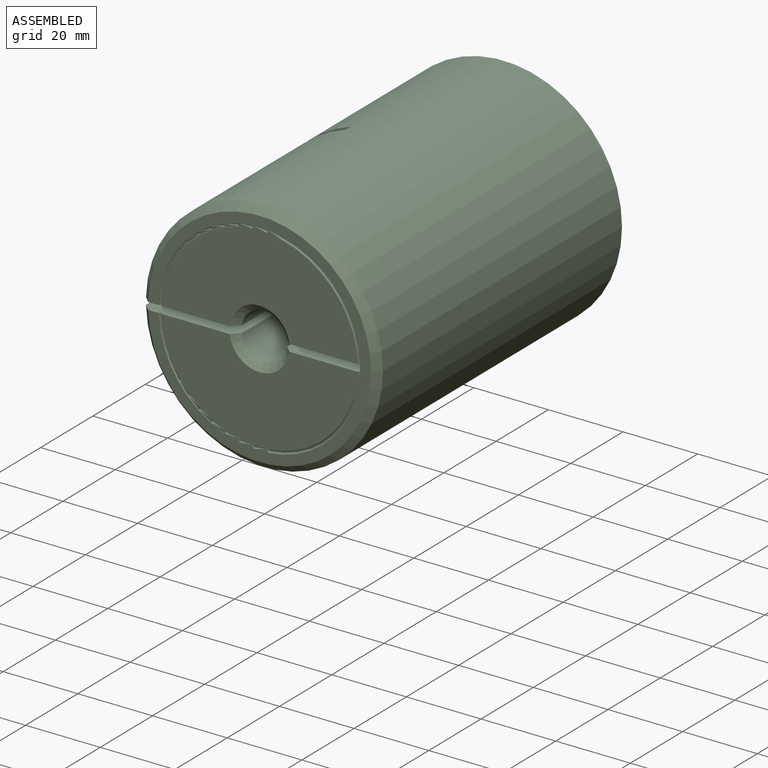
[diagram: assembled view]
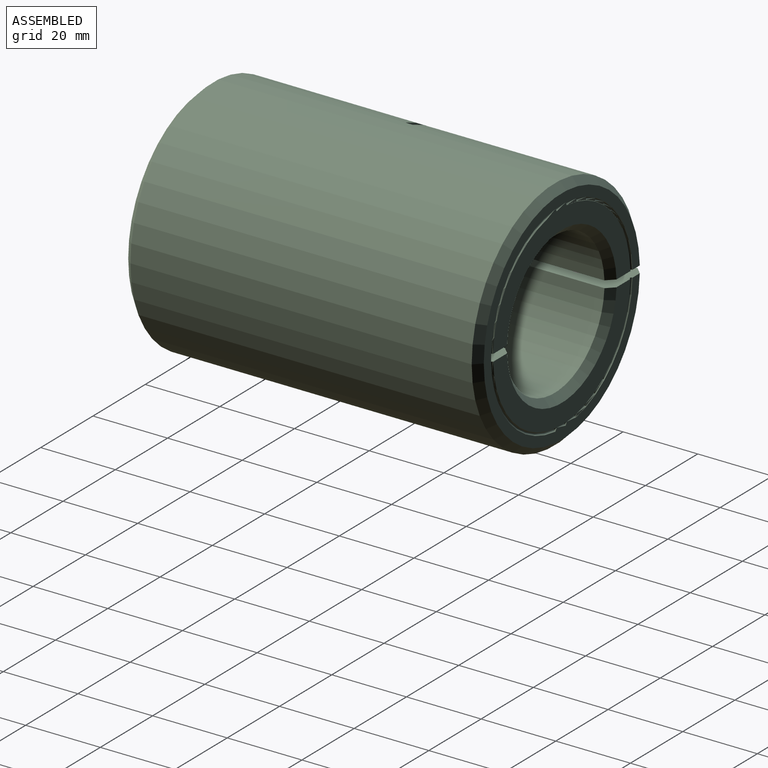
[diagram: assembled view, second angle]
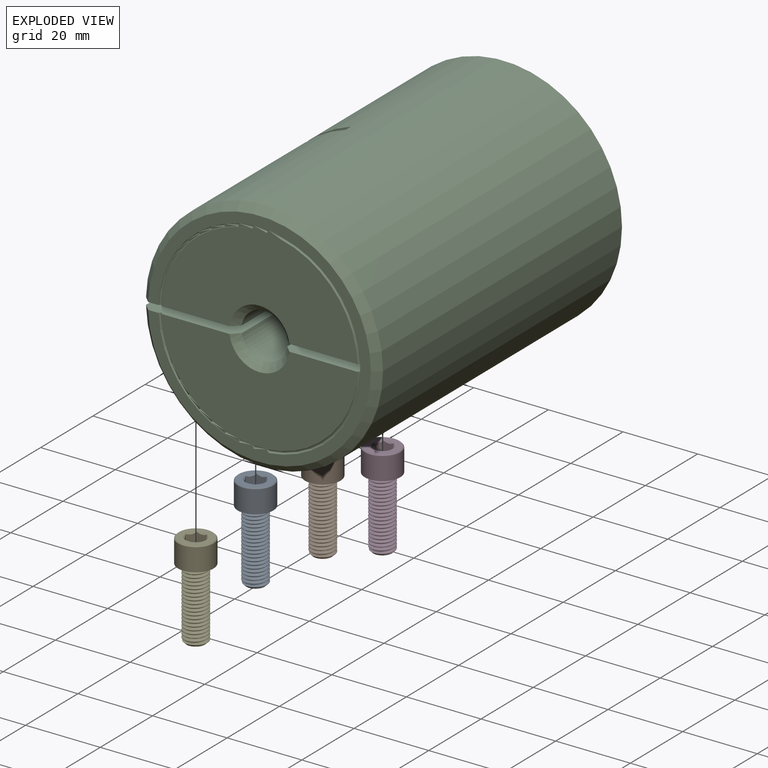
[diagram: exploded view]
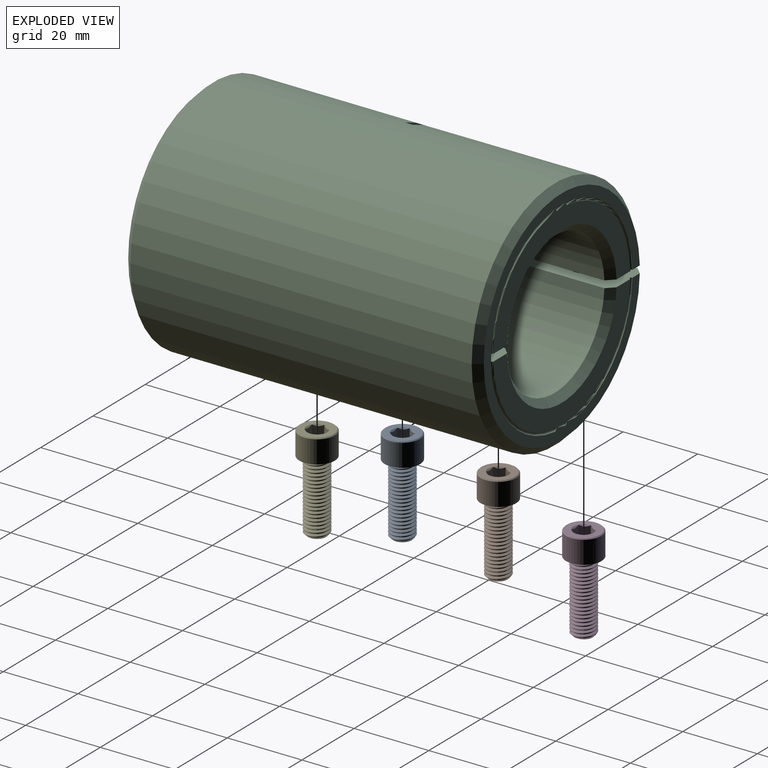
[diagram: exploded view, second angle]
ASSEMBLY  parts=5 mates=4
PART A: 24 faces, bbox 9.9x9.9x26.1 mm
  f0: cylinder r=3.17mm len=18.36mm, axis (0,0,1), area 45.7mm2, adj f1,f18,f19,f21,f22
  f1: plane 9.88x9.88mm, normal (0,0,-1), area 45.1mm2, adj f0,f2,f21,f22,f23
  f2: cylinder r=4.76mm len=9.53mm, axis (0,0,1), area 182.4mm2, adj f1,f3
  f3: cone r=4.51mm half-angle=45deg, axis (0,0,-1), area 10.5mm2, adj f2,f4
  f4: plane 9.02x9.02mm, normal (0,0,1), area 40.1mm2, adj f3,f5,f6,f7,f8,f9,f10
  f5: cone r=2.75mm half-angle=45deg, axis (0,0,1), area 1mm2, adj f4,f12
  f6: cone r=2.75mm half-angle=45deg, axis (0,0,1), area 1mm2, adj f4,f13
  f7: cone r=2.75mm half-angle=45deg, axis (0,0,1), area 1mm2, adj f4,f14
  f8: cone r=2.75mm half-angle=45deg, axis (0,0,1), area 1mm2, adj f4,f15
  f9: cone r=2.75mm half-angle=45deg, axis (0,0,1), area 1mm2, adj f4,f16
  f10: cone r=2.75mm half-angle=45deg, axis (0,0,1), area 1mm2, adj f4,f17
  f11: plane 5.5x4.76mm, normal (0,0,1), area 19.6mm2, adj f12,f13,f14,f15,f16,f17
  f12: plane 4.45x2.38mm, normal (0.5,-0.87,0), area 11.6mm2, adj f5,f11,f13,f17
  f13: plane 4.45x2.75mm, normal (1,0,0), area 11.6mm2, adj f6,f11,f12,f14
  f14: plane 4.45x2.38mm, normal (0.5,0.87,0), area 11.6mm2, adj f7,f11,f13,f15
  f15: plane 4.45x2.38mm, normal (-0.5,0.87,0), area 11.6mm2, adj f8,f11,f14,f16
  f16: plane 4.45x2.75mm, normal (-1,0,0), area 11.6mm2, adj f9,f11,f15,f17
  f17: plane 4.45x2.38mm, normal (-0.5,-0.87,0), area 11.6mm2, adj f10,f11,f12,f16
  f18: cone r=2.49mm half-angle=45deg, axis (0,0,1), area 9.6mm2, adj f0,f19,f20,f21,f22,f23
  f19: cone r=2.49mm half-angle=45deg, axis (0,0,1), area 0mm2, adj f0,f18,f22
  f20: plane 4.98x4.98mm, normal (0,0,-1), area 19.4mm2, adj f18
  f21: bspline ~19.87x6.45mm, area 254mm2, adj f0,f1,f18,f23
  f22: bspline ~19.42x6.45mm, area 253.2mm2, adj f0,f1,f18,f19,f23
  f23: cylinder r=2.59mm len=18.95mm, axis (0,0,-1), area 38.8mm2, adj f1,f18,f21,f22
PART B: 24 faces, bbox 9.9x9.9x26.1 mm
  f0: cylinder r=3.17mm len=18.36mm, axis (0,0,1), area 45.7mm2, adj f1,f18,f19,f21,f22
  f1: plane 9.88x9.88mm, normal (0,0,-1), area 45.1mm2, adj f0,f2,f21,f22,f23
  f2: cylinder r=4.76mm len=9.53mm, axis (0,0,1), area 182.4mm2, adj f1,f3
  f3: cone r=4.51mm half-angle=45deg, axis (0,0,-1), area 10.5mm2, adj f2,f4
  f4: plane 9.02x9.02mm, normal (0,0,1), area 40.1mm2, adj f3,f5,f6,f7,f8,f9,f10
  f5: cone r=2.75mm half-angle=45deg, axis (0,0,1), area 1mm2, adj f4,f12
  f6: cone r=2.75mm half-angle=45deg, axis (0,0,1), area 1mm2, adj f4,f13
  f7: cone r=2.75mm half-angle=45deg, axis (0,0,1), area 1mm2, adj f4,f14
  f8: cone r=2.75mm half-angle=45deg, axis (0,0,1), area 1mm2, adj f4,f15
  f9: cone r=2.75mm half-angle=45deg, axis (0,0,1), area 1mm2, adj f4,f16
  f10: cone r=2.75mm half-angle=45deg, axis (0,0,1), area 1mm2, adj f4,f17
  f11: plane 5.5x4.76mm, normal (0,0,1), area 19.6mm2, adj f12,f13,f14,f15,f16,f17
  f12: plane 4.45x2.38mm, normal (0.5,-0.87,0), area 11.6mm2, adj f5,f11,f13,f17
  f13: plane 4.45x2.75mm, normal (1,0,0), area 11.6mm2, adj f6,f11,f12,f14
  f14: plane 4.45x2.38mm, normal (0.5,0.87,0), area 11.6mm2, adj f7,f11,f13,f15
  f15: plane 4.45x2.38mm, normal (-0.5,0.87,0), area 11.6mm2, adj f8,f11,f14,f16
  f16: plane 4.45x2.75mm, normal (-1,0,0), area 11.6mm2, adj f9,f11,f15,f17
  f17: plane 4.45x2.38mm, normal (-0.5,-0.87,0), area 11.6mm2, adj f10,f11,f12,f16
  f18: cone r=2.49mm half-angle=45deg, axis (0,0,1), area 9.6mm2, adj f0,f19,f20,f21,f22,f23
  f19: cone r=2.49mm half-angle=45deg, axis (0,0,1), area 0mm2, adj f0,f18,f22
  f20: plane 4.98x4.98mm, normal (0,0,-1), area 19.4mm2, adj f18
  f21: bspline ~19.87x6.45mm, area 254mm2, adj f0,f1,f18,f23
  f22: bspline ~19.42x6.45mm, area 253.2mm2, adj f0,f1,f18,f19,f23
  f23: cylinder r=2.59mm len=18.95mm, axis (0,0,-1), area 38.8mm2, adj f1,f18,f21,f22
PART C: 50 faces, bbox 95.8x63.5x63.5 mm
  f0: plane 46.68x12.72mm, normal (0,0,-1), area 526mm2, adj f9,f10,f11,f12,f18,f21,f22,f31
  f1: plane 46.68x12.72mm, normal (0,0,1), area 526mm2, adj f2,f6,f8,f10,f11,f12,f22,f30
  f2: plane 52.51x25.32mm, normal (-1,0,0), area 384.4mm2, adj f1,f8,f10,f26
  f3: plane 52.51x25.32mm, normal (1,0,0), area 947.4mm2, adj f7,f14,f24,f26
  f4: cylinder r=6.16mm len=45.72mm, axis (-1,0,0), area 797.3mm2, adj f5,f7,f24,f26
  f5: plane 28.55x18.1mm, normal (-1,0,0), area 383.5mm2, adj f4,f6,f24,f26,f29
  f6: cylinder r=19.05mm len=45.72mm, axis (-1,0,0), area 2631mm2, adj f1,f5,f8,f26,f29,f30
  f7: cone r=8.06mm half-angle=45deg, axis (1,0,0), area 55mm2, adj f3,f4,f24,f26
  f8: cone r=19.05mm half-angle=45deg, axis (-1,0,0), area 164.2mm2, adj f1,f2,f6,f26
  f9: plane 52.51x25.32mm, normal (-1,0,0), area 384.4mm2, adj f0,f10,f21,f27
  f10: torus R=26.67mm, axis (-1,0,0), area 205.4mm2, adj f0,f1,f2,f9,f11,f25,f26,f27
  f11: plane 59.69x59.67mm, normal (-1,0,0), area 491.4mm2, adj f0,f1,f10,f22
  f12: cylinder r=31.75mm len=91.44mm, axis (-1,0,0), area 17161.4mm2, adj f0,f1,f19,f22,f23,f24,f28,f29
  f13: plane 59.69x59.67mm, normal (1,0,0), area 491.4mm2, adj f14,f19,f23,f24
  f14: torus R=26.67mm, axis (-1,0,0), area 205.4mm2, adj f3,f13,f15,f23,f24,f25,f26,f27
  f15: plane 52.51x25.32mm, normal (1,0,0), area 947.4mm2, adj f14,f20,f23,f27
  f16: cylinder r=6.16mm len=45.72mm, axis (-1,0,0), area 797.3mm2, adj f17,f20,f23,f27
  f17: plane 28.55x18.1mm, normal (-1,0,0), area 383.5mm2, adj f16,f18,f23,f27,f32
  f18: cylinder r=19.05mm len=45.72mm, axis (-1,0,0), area 2631mm2, adj f0,f17,f21,f27,f31,f32
  f19: cone r=31.75mm half-angle=45deg, axis (-1,0,0), area 516.2mm2, adj f12,f13,f23,f24
  f20: cone r=8.06mm half-angle=45deg, axis (1,0,0), area 55mm2, adj f15,f16,f23,f27
  f21: cone r=19.05mm half-angle=45deg, axis (-1,0,0), area 164.2mm2, adj f0,f9,f18,f27
  f22: cone r=29.84mm half-angle=45deg, axis (1,0,0), area 516.2mm2, adj f0,f1,f11,f12
  f23: plane 47.66x25.69mm, normal (0,0,-1), area 1133.2mm2, adj f12,f13,f14,f15,f16,f17,f19,f20
  f24: plane 47.66x25.69mm, normal (0,0,1), area 1133.2mm2, adj f3,f4,f5,f7,f12,f13,f14,f19
  f25: plane 94.46x1.91mm, normal (0,-1,0), area 179.9mm2, adj f10,f14,f26,f27
  f26: plane 95.29x20.62mm, normal (0,0,1), area 1340.5mm2, adj f2,f3,f4,f5,f6,f7,f8,f10
  f27: plane 95.29x20.62mm, normal (0,0,-1), area 1340.5mm2, adj f9,f10,f14,f15,f16,f17,f18,f20
  f28: plane 29.34x22.21mm, normal (-1,0,0), area 472.7mm2, adj f12,f24,f29
  f29: plane 29.34x1.91mm, normal (0,-1,0), area 41.1mm2, adj f5,f6,f12,f24,f28,f30
  f30: plane 29.34x22.21mm, normal (1,0,0), area 370.4mm2, adj f1,f6,f12,f29
  f31: plane 29.34x22.21mm, normal (1,0,0), area 370.4mm2, adj f0,f12,f18,f32
  f32: plane 29.34x1.91mm, normal (0,-1,0), area 41.1mm2, adj f12,f17,f18,f23,f31,f33
  f33: plane 29.34x22.21mm, normal (-1,0,0), area 472.7mm2, adj f12,f23,f32
  f34: cylinder r=3.17mm len=21.72mm, axis (0,0,1), area 353.2mm2, adj f1,f12
  f35: cylinder r=4.91mm len=17.91mm, axis (0,0,1), area 360.2mm2, adj f12,f37
  f36: cylinder r=3.17mm len=6.35mm, axis (0,0,1), area 107.7mm2, adj f0,f37
  f37: plane 9.83x9.83mm, normal (0,0,1), area 44.2mm2, adj f35,f36
  f38: cylinder r=3.17mm len=21.72mm, axis (0,0,1), area 353.2mm2, adj f1,f12
  f39: cylinder r=4.91mm len=17.91mm, axis (0,0,1), area 360.2mm2, adj f12,f41
  f40: cylinder r=3.17mm len=6.35mm, axis (0,0,1), area 107.7mm2, adj f0,f41
  f41: plane 9.83x9.83mm, normal (0,0,1), area 44.2mm2, adj f39,f40
  f42: cylinder r=3.17mm len=21.72mm, axis (0,0,1), area 353.3mm2, adj f12,f24
  f43: cylinder r=4.91mm len=17.91mm, axis (0,0,1), area 360.4mm2, adj f12,f45
  f44: cylinder r=3.17mm len=6.35mm, axis (0,0,1), area 107.7mm2, adj f23,f45
  f45: plane 9.83x9.83mm, normal (0,0,1), area 44.2mm2, adj f43,f44
  f46: cylinder r=3.17mm len=21.72mm, axis (0,0,1), area 353.3mm2, adj f12,f24
  f47: cylinder r=4.91mm len=17.91mm, axis (0,0,1), area 360.4mm2, adj f12,f49
  f48: cylinder r=3.17mm len=6.35mm, axis (0,0,1), area 107.7mm2, adj f23,f49
  f49: plane 9.83x9.83mm, normal (0,0,1), area 44.2mm2, adj f47,f48
PART D: 24 faces, bbox 9.9x9.9x26.1 mm
  f0: cylinder r=3.17mm len=18.36mm, axis (0,0,1), area 45.7mm2, adj f1,f18,f19,f21,f22
  f1: plane 9.88x9.88mm, normal (0,0,-1), area 45.1mm2, adj f0,f2,f21,f22,f23
  f2: cylinder r=4.76mm len=9.53mm, axis (0,0,1), area 182.4mm2, adj f1,f3
  f3: cone r=4.51mm half-angle=45deg, axis (0,0,-1), area 10.5mm2, adj f2,f4
  f4: plane 9.02x9.02mm, normal (0,0,1), area 40.1mm2, adj f3,f5,f6,f7,f8,f9,f10
  f5: cone r=2.75mm half-angle=45deg, axis (0,0,1), area 1mm2, adj f4,f12
  f6: cone r=2.75mm half-angle=45deg, axis (0,0,1), area 1mm2, adj f4,f13
  f7: cone r=2.75mm half-angle=45deg, axis (0,0,1), area 1mm2, adj f4,f14
  f8: cone r=2.75mm half-angle=45deg, axis (0,0,1), area 1mm2, adj f4,f15
  f9: cone r=2.75mm half-angle=45deg, axis (0,0,1), area 1mm2, adj f4,f16
  f10: cone r=2.75mm half-angle=45deg, axis (0,0,1), area 1mm2, adj f4,f17
  f11: plane 5.5x4.76mm, normal (0,0,1), area 19.6mm2, adj f12,f13,f14,f15,f16,f17
  f12: plane 4.45x2.38mm, normal (0.5,-0.87,0), area 11.6mm2, adj f5,f11,f13,f17
  f13: plane 4.45x2.75mm, normal (1,0,0), area 11.6mm2, adj f6,f11,f12,f14
  f14: plane 4.45x2.38mm, normal (0.5,0.87,0), area 11.6mm2, adj f7,f11,f13,f15
  f15: plane 4.45x2.38mm, normal (-0.5,0.87,0), area 11.6mm2, adj f8,f11,f14,f16
  f16: plane 4.45x2.75mm, normal (-1,0,0), area 11.6mm2, adj f9,f11,f15,f17
  f17: plane 4.45x2.38mm, normal (-0.5,-0.87,0), area 11.6mm2, adj f10,f11,f12,f16
  f18: cone r=2.49mm half-angle=45deg, axis (0,0,1), area 9.6mm2, adj f0,f19,f20,f21,f22,f23
  f19: cone r=2.49mm half-angle=45deg, axis (0,0,1), area 0mm2, adj f0,f18,f22
  f20: plane 4.98x4.98mm, normal (0,0,-1), area 19.4mm2, adj f18
  f21: bspline ~19.87x6.45mm, area 254mm2, adj f0,f1,f18,f23
  f22: bspline ~19.42x6.45mm, area 253.2mm2, adj f0,f1,f18,f19,f23
  f23: cylinder r=2.59mm len=18.95mm, axis (0,0,-1), area 38.8mm2, adj f1,f18,f21,f22
PART E: 24 faces, bbox 9.9x9.9x26.1 mm
  f0: cylinder r=3.17mm len=18.36mm, axis (0,0,1), area 45.7mm2, adj f1,f18,f19,f21,f22
  f1: plane 9.88x9.88mm, normal (0,0,-1), area 45.1mm2, adj f0,f2,f21,f22,f23
  f2: cylinder r=4.76mm len=9.53mm, axis (0,0,1), area 182.4mm2, adj f1,f3
  f3: cone r=4.51mm half-angle=45deg, axis (0,0,-1), area 10.5mm2, adj f2,f4
  f4: plane 9.02x9.02mm, normal (0,0,1), area 40.1mm2, adj f3,f5,f6,f7,f8,f9,f10
  f5: cone r=2.75mm half-angle=45deg, axis (0,0,1), area 1mm2, adj f4,f12
  f6: cone r=2.75mm half-angle=45deg, axis (0,0,1), area 1mm2, adj f4,f13
  f7: cone r=2.75mm half-angle=45deg, axis (0,0,1), area 1mm2, adj f4,f14
  f8: cone r=2.75mm half-angle=45deg, axis (0,0,1), area 1mm2, adj f4,f15
  f9: cone r=2.75mm half-angle=45deg, axis (0,0,1), area 1mm2, adj f4,f16
  f10: cone r=2.75mm half-angle=45deg, axis (0,0,1), area 1mm2, adj f4,f17
  f11: plane 5.5x4.76mm, normal (0,0,1), area 19.6mm2, adj f12,f13,f14,f15,f16,f17
  f12: plane 4.45x2.38mm, normal (0.5,-0.87,0), area 11.6mm2, adj f5,f11,f13,f17
  f13: plane 4.45x2.75mm, normal (1,0,0), area 11.6mm2, adj f6,f11,f12,f14
  f14: plane 4.45x2.38mm, normal (0.5,0.87,0), area 11.6mm2, adj f7,f11,f13,f15
  f15: plane 4.45x2.38mm, normal (-0.5,0.87,0), area 11.6mm2, adj f8,f11,f14,f16
  f16: plane 4.45x2.75mm, normal (-1,0,0), area 11.6mm2, adj f9,f11,f15,f17
  f17: plane 4.45x2.38mm, normal (-0.5,-0.87,0), area 11.6mm2, adj f10,f11,f12,f16
  f18: cone r=2.49mm half-angle=45deg, axis (0,0,1), area 9.6mm2, adj f0,f19,f20,f21,f22,f23
  f19: cone r=2.49mm half-angle=45deg, axis (0,0,1), area 0mm2, adj f0,f18,f22
  f20: plane 4.98x4.98mm, normal (0,0,-1), area 19.4mm2, adj f18
  f21: bspline ~19.87x6.45mm, area 254mm2, adj f0,f1,f18,f23
  f22: bspline ~19.42x6.45mm, area 253.2mm2, adj f0,f1,f18,f19,f23
  f23: cylinder r=2.59mm len=18.95mm, axis (0,0,-1), area 38.8mm2, adj f1,f18,f21,f22
PLACE A rot(axis=(0,0,-1),90deg) t=(0,0,0)mm
PLACE B rot(axis=(0,0,-1),90deg) t=(0,0,0)mm
PLACE C rot(axis=(0,0,-1),90deg) t=(0,0,0)mm
PLACE D rot(axis=(0,0,-1),90deg) t=(0,0,0)mm
PLACE E rot(axis=(0,0,-1),90deg) t=(0,0,0)mm
MATE fastened E.f0 <-> C.f42  axis (0,0,-1) through (-25.4,-35.72,6.35)mm
MATE fastened D.f0 <-> C.f34  axis (0,0,-1) through (-25.4,35.72,6.35)mm
MATE fastened B.f0 <-> C.f38  axis (0,0,-1) through (-25.4,12.86,6.35)mm
MATE fastened C.f46 <-> A.f0  axis (0,0,1) through (-25.4,-12.86,6.35)mm
